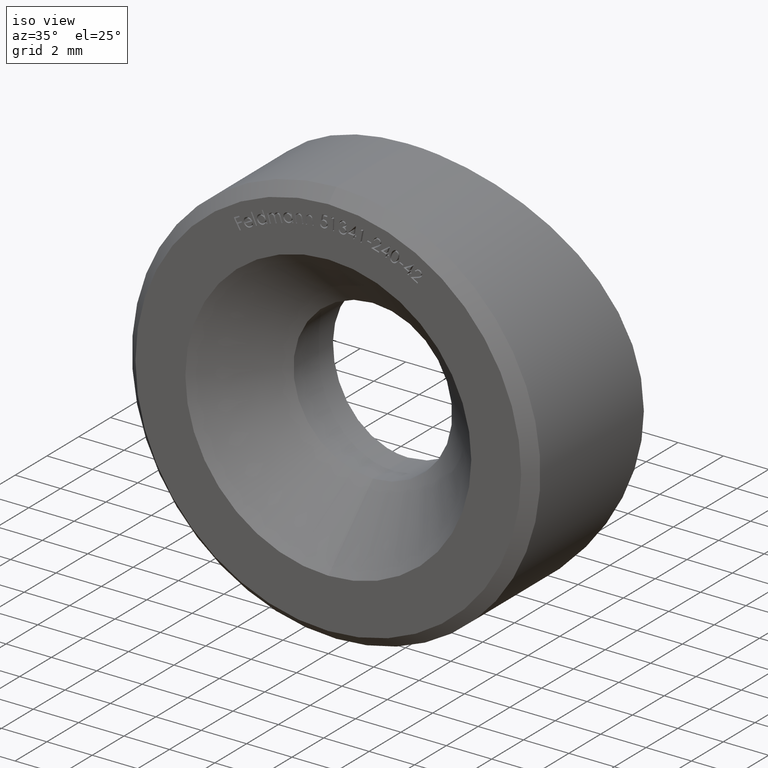
[diagram: clean part render]
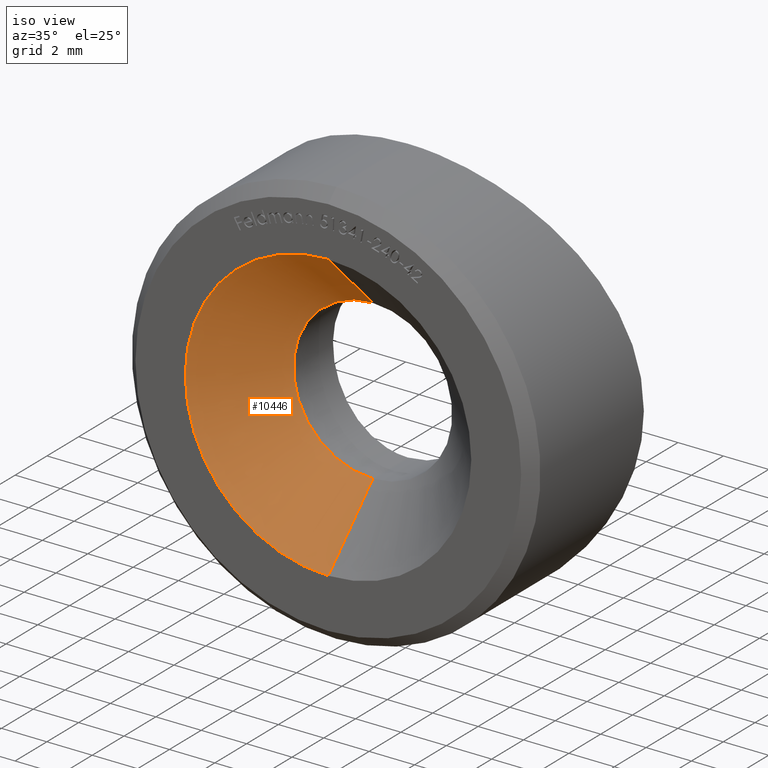
[diagram: same view with one face highlighted and labeled with its STEP entity id]
A machine part, iso view. The second image highlights one B-rep face of the part: STEP entity #10446.
In plain terms, the highlighted conical surface has half-angle 45 deg.
Its self-contained STEP definition (entity closure, byte-faithful):
#1179 = DIRECTION ( 'NONE',  ( 0.000000000000000000, 0.000000000000000000, -1.000000000000000000 ) ) ;
#1900 = CARTESIAN_POINT ( 'NONE',  ( 7.715274834628325378E-16, -8.673617379884035472E-16, 6.299999999999999822 ) ) ;
#1969 = CARTESIAN_POINT ( 'NONE',  ( 7.715274834628325378E-16, -8.673617379884035472E-16, 6.299999999999999822 ) ) ;
#2936 = DIRECTION ( 'NONE',  ( -0.000000000000000000, -1.000000000000000000, -0.000000000000000000 ) ) ;
#3092 = EDGE_CURVE ( 'NONE', #7041, #3526, #3275, .T. ) ;
#3189 = CARTESIAN_POINT ( 'NONE',  ( 0.000000000000000000, -8.673617379884035472E-16, 0.000000000000000000 ) ) ;
#3275 = LINE ( 'NONE', #13023, #5340 ) ;
#3526 = VERTEX_POINT ( 'NONE', #7931 ) ;
#3527 = CARTESIAN_POINT ( 'NONE',  ( 0.000000000000000000, 2.799999999999997602, -3.500000000000000000 ) ) ;
#3976 = DIRECTION ( 'NONE',  ( 0.000000000000000000, 0.000000000000000000, -1.000000000000000000 ) ) ;
#4136 = EDGE_CURVE ( 'NONE', #9547, #7041, #11255, .T. ) ;
#4851 = ORIENTED_EDGE ( 'NONE', *, *, #9249, .T. ) ;
#5340 = VECTOR ( 'NONE', #13113, 999.9999999999998863 ) ;
#5554 = CIRCLE ( 'NONE', #12189, 6.299999999999999822 ) ;
#6264 = ORIENTED_EDGE ( 'NONE', *, *, #3092, .F. ) ;
#6628 = ORIENTED_EDGE ( 'NONE', *, *, #4136, .F. ) ;
#6695 = AXIS2_PLACEMENT_3D ( 'NONE', #8550, #12639, #8497 ) ;
#6833 = EDGE_CURVE ( 'NONE', #9547, #12136, #10543, .T. ) ;
#6983 = AXIS2_PLACEMENT_3D ( 'NONE', #7110, #2936, #3976 ) ;
#7041 = VERTEX_POINT ( 'NONE', #3527 ) ;
#7110 = CARTESIAN_POINT ( 'NONE',  ( 0.000000000000000000, -8.673617379884035472E-16, 0.000000000000000000 ) ) ;
#7129 = CONICAL_SURFACE ( 'NONE', #6983, 6.299999999999999822, 0.7853981633974485010 ) ;
#7270 = DIRECTION ( 'NONE',  ( -0.000000000000000000, -1.000000000000000000, -0.000000000000000000 ) ) ;
#7931 = CARTESIAN_POINT ( 'NONE',  ( 0.000000000000000000, -8.673617379884035472E-16, -6.299999999999999822 ) ) ;
#7948 = ORIENTED_EDGE ( 'NONE', *, *, #6833, .T. ) ;
#8497 = DIRECTION ( 'NONE',  ( 0.000000000000000000, 0.000000000000000000, -1.000000000000000000 ) ) ;
#8550 = CARTESIAN_POINT ( 'NONE',  ( 0.000000000000000000, 2.799999999999997602, 0.000000000000000000 ) ) ;
#9249 = EDGE_CURVE ( 'NONE', #12136, #3526, #5554, .T. ) ;
#9547 = VERTEX_POINT ( 'NONE', #11369 ) ;
#10446 = ADVANCED_FACE ( 'NONE', ( #11907 ), #7129, .F. ) ;
#10543 = LINE ( 'NONE', #1969, #12115 ) ;
#10986 = DIRECTION ( 'NONE',  ( 8.659560562354936556E-17, -0.7071067811865473507, 0.7071067811865477948 ) ) ;
#11255 = CIRCLE ( 'NONE', #6695, 3.500000000000000000 ) ;
#11369 = CARTESIAN_POINT ( 'NONE',  ( 4.286263797015736595E-16, 2.799999999999997602, 3.500000000000000000 ) ) ;
#11813 = EDGE_LOOP ( 'NONE', ( #6628, #7948, #4851, #6264 ) ) ;
#11907 = FACE_OUTER_BOUND ( 'NONE', #11813, .T. ) ;
#12115 = VECTOR ( 'NONE', #10986, 999.9999999999998863 ) ;
#12136 = VERTEX_POINT ( 'NONE', #1900 ) ;
#12189 = AXIS2_PLACEMENT_3D ( 'NONE', #3189, #7270, #1179 ) ;
#12639 = DIRECTION ( 'NONE',  ( -0.000000000000000000, -1.000000000000000000, -0.000000000000000000 ) ) ;
#13023 = CARTESIAN_POINT ( 'NONE',  ( 0.000000000000000000, -8.673617379884035472E-16, -6.299999999999999822 ) ) ;
#13113 = DIRECTION ( 'NONE',  ( 0.000000000000000000, -0.7071067811865473507, -0.7071067811865477948 ) ) ;